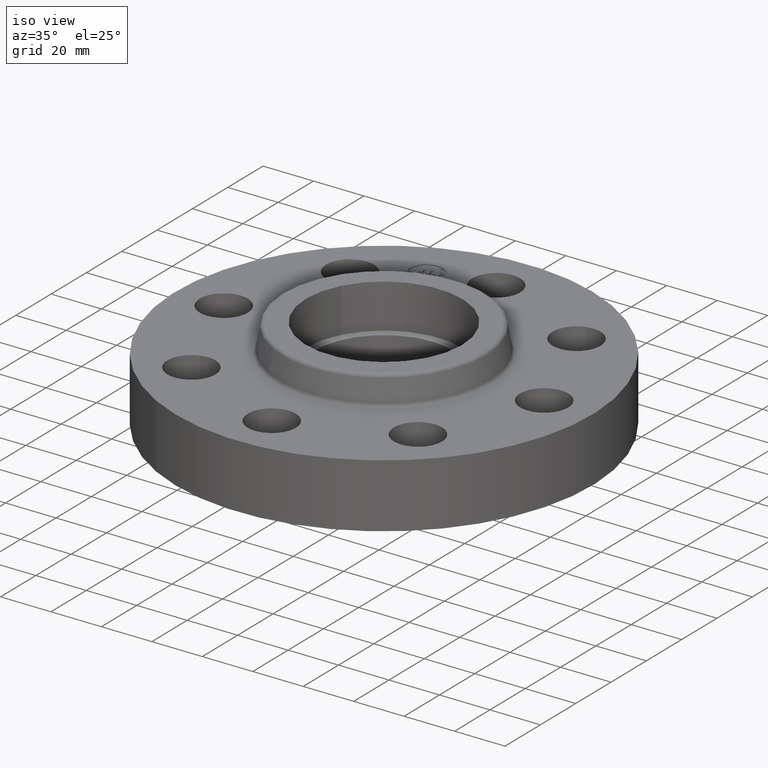
[diagram: clean part render]
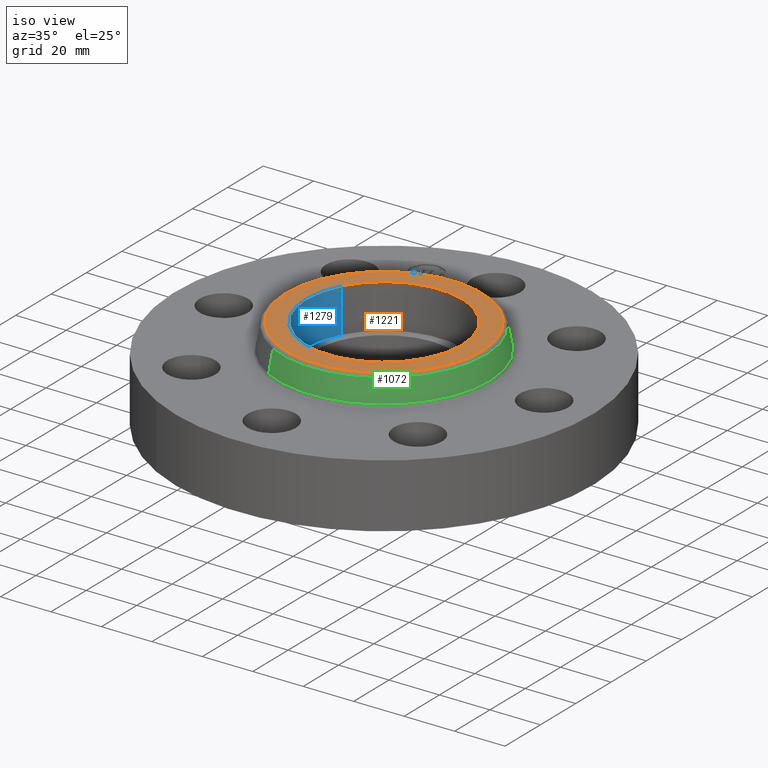
[diagram: same view with three faces highlighted in distinct colors, each labeled with its STEP entity id]
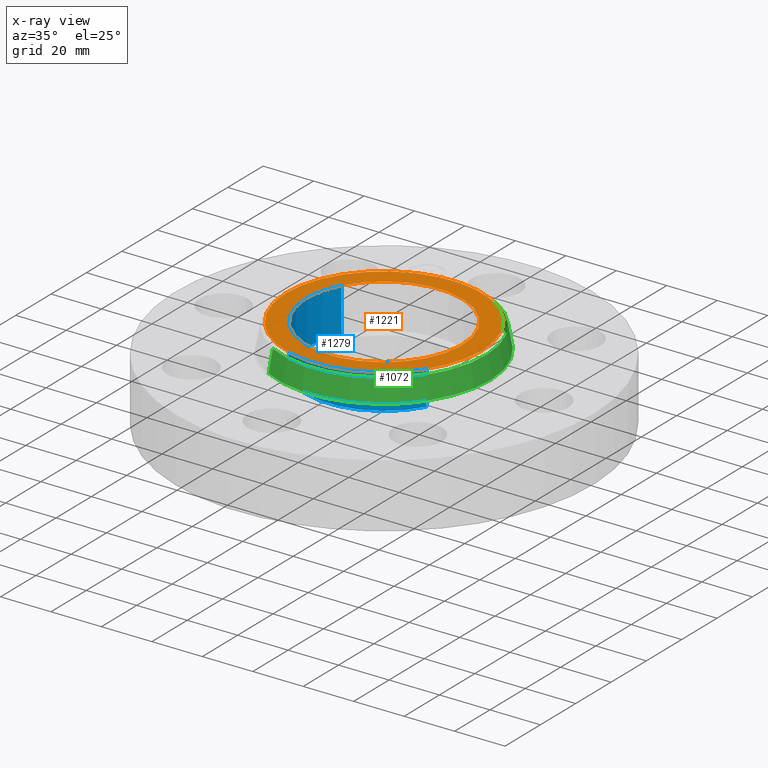
[diagram: x-ray of the same camera — body ghosted, the three highlighted faces saturated]
A machine part, iso view with three faces highlighted in distinct colors.
The next image is the same camera in x-ray (body ghosted, the three faces saturated) — at least one of them is partly hidden behind the body in this view.
Their STEP definitions:

[orange] entity #1221 — the highlighted planar face has unit normal (0, 0, -1).
#1142=AXIS2_PLACEMENT_3D('Circle Axis2P3D',#1140,#1141,$) ;
#1161=AXIS2_PLACEMENT_3D('Circle Axis2P3D',#1159,#1160,$) ;
#1197=AXIS2_PLACEMENT_3D('Plane Axis2P3D',#1194,#1195,#1196) ;
#1205=AXIS2_PLACEMENT_3D('Circle Axis2P3D',#1203,#1204,$) ;
#1214=AXIS2_PLACEMENT_3D('Circle Axis2P3D',#1212,#1213,$) ;
#1137=CARTESIAN_POINT('Vertex',(0.732116429449,1.34013013497,1.44000000001)) ;
#1140=CARTESIAN_POINT('Axis2P3D Location',(0.,0.,1.44000000001)) ;
#1144=CARTESIAN_POINT('Vertex',(-0.732116429449,-1.34013013497,1.44000000001)) ;
#1159=CARTESIAN_POINT('Axis2P3D Location',(0.,0.,1.44000000001)) ;
#1194=CARTESIAN_POINT('Axis2P3D Location',(0.,1.52707015062,1.44000000001)) ;
#1203=CARTESIAN_POINT('Axis2P3D Location',(2.09805925913E-016,-5.59482469102E-016,1.44000000001)) ;
#1207=CARTESIAN_POINT('Vertex',(-1.07065072551,0.584899157099,1.44000000001)) ;
#1209=CARTESIAN_POINT('Vertex',(1.07065072551,-0.584899157099,1.44000000001)) ;
#1212=CARTESIAN_POINT('Axis2P3D Location',(1.39870617276E-016,-2.79741234551E-016,1.44000000001)) ;
#1141=DIRECTION('Axis2P3D Direction',(0.,0.,-0.0393700787402)) ;
#1160=DIRECTION('Axis2P3D Direction',(0.,0.,-0.0393700787402)) ;
#1195=DIRECTION('Axis2P3D Direction',(0.,0.,-0.0393700787402)) ;
#1196=DIRECTION('Axis2P3D XDirection',(0.0393700787402,0.,0.)) ;
#1204=DIRECTION('Axis2P3D Direction',(0.,0.,-0.0393700787402)) ;
#1213=DIRECTION('Axis2P3D Direction',(0.,0.,-0.0393700787402)) ;
#1200=ORIENTED_EDGE('',*,*,#1146,.F.) ;
#1201=ORIENTED_EDGE('',*,*,#1163,.F.) ;
#1218=ORIENTED_EDGE('',*,*,#1211,.T.) ;
#1219=ORIENTED_EDGE('',*,*,#1216,.T.) ;
#1220=FACE_BOUND('',#1217,.T.) ;
#1221=ADVANCED_FACE('PartBody',(#1202,#1220),#1198,.F.) ;
#1143=CIRCLE('generated circle',#1142,1.52707015062) ;
#1162=CIRCLE('generated circle',#1161,1.52707015062) ;
#1206=CIRCLE('generated circle',#1205,1.22) ;
#1215=CIRCLE('generated circle',#1214,1.22) ;
#1146=EDGE_CURVE('',#1138,#1145,#1143,.T.) ;
#1163=EDGE_CURVE('',#1145,#1138,#1162,.T.) ;
#1211=EDGE_CURVE('',#1208,#1210,#1206,.T.) ;
#1216=EDGE_CURVE('',#1210,#1208,#1215,.T.) ;
#1199=EDGE_LOOP('',(#1200,#1201)) ;
#1217=EDGE_LOOP('',(#1218,#1219)) ;
#1202=FACE_OUTER_BOUND('',#1199,.T.) ;
#1198=PLANE('',#1197) ;
#1138=VERTEX_POINT('',#1137) ;
#1145=VERTEX_POINT('',#1144) ;
#1208=VERTEX_POINT('',#1207) ;
#1210=VERTEX_POINT('',#1209) ;

[blue] entity #1279 — the highlighted cylindrical surface (partial cylindrical patch) has radius 30.988 mm, axis along (0, 0, -1).
#51=AXIS2_PLACEMENT_3D('Circle Axis2P3D',#49,#50,$) ;
#1214=AXIS2_PLACEMENT_3D('Circle Axis2P3D',#1212,#1213,$) ;
#1254=AXIS2_PLACEMENT_3D('Cylinder Axis2P3D',#1251,#1252,#1253) ;
#44=CARTESIAN_POINT('Vertex',(-1.07065072551,0.584899157099,0.750000000003)) ;
#46=CARTESIAN_POINT('Vertex',(1.07065072551,-0.584899157099,0.750000000003)) ;
#49=CARTESIAN_POINT('Axis2P3D Location',(1.04902962957E-016,-6.99353086378E-017,0.750000000003)) ;
#1207=CARTESIAN_POINT('Vertex',(-1.07065072551,0.584899157099,1.44000000001)) ;
#1209=CARTESIAN_POINT('Vertex',(1.07065072551,-0.584899157099,1.44000000001)) ;
#1212=CARTESIAN_POINT('Axis2P3D Location',(1.39870617276E-016,-2.79741234551E-016,1.44000000001)) ;
#1251=CARTESIAN_POINT('Axis2P3D Location',(1.04902962957E-016,-6.99353086378E-017,1.43606299213)) ;
#1256=CARTESIAN_POINT('Line Origine',(-1.07065072551,0.584899157099,1.095)) ;
#1261=CARTESIAN_POINT('Line Origine',(1.07065072551,-0.584899157099,1.095)) ;
#50=DIRECTION('Axis2P3D Direction',(0.,0.,-0.0393700787402)) ;
#1213=DIRECTION('Axis2P3D Direction',(0.,0.,-0.0393700787402)) ;
#1252=DIRECTION('Axis2P3D Direction',(0.,0.,-0.0393700787402)) ;
#1253=DIRECTION('Axis2P3D XDirection',(0.0345504945626,-0.0188750212049,0.)) ;
#1257=DIRECTION('Vector Direction',(0.,0.,-0.0393700787402)) ;
#1262=DIRECTION('Vector Direction',(0.,0.,-0.0393700787402)) ;
#1258=VECTOR('Line Direction',#1257,0.0393700787402) ;
#1263=VECTOR('Line Direction',#1262,0.0393700787402) ;
#1274=ORIENTED_EDGE('',*,*,#1216,.F.) ;
#1275=ORIENTED_EDGE('',*,*,#1265,.F.) ;
#1276=ORIENTED_EDGE('',*,*,#53,.T.) ;
#1277=ORIENTED_EDGE('',*,*,#1260,.T.) ;
#1279=ADVANCED_FACE('PartBody',(#1278),#1255,.F.) ;
#52=CIRCLE('generated circle',#51,1.22) ;
#1215=CIRCLE('generated circle',#1214,1.22) ;
#1255=CYLINDRICAL_SURFACE('generated cylinder',#1254,1.22) ;
#53=EDGE_CURVE('',#47,#45,#52,.T.) ;
#1216=EDGE_CURVE('',#1210,#1208,#1215,.T.) ;
#1260=EDGE_CURVE('',#45,#1208,#1259,.F.) ;
#1265=EDGE_CURVE('',#47,#1210,#1264,.F.) ;
#1273=EDGE_LOOP('',(#1274,#1275,#1276,#1277)) ;
#1278=FACE_OUTER_BOUND('',#1273,.T.) ;
#1259=LINE('Line',#1256,#1258) ;
#1264=LINE('Line',#1261,#1263) ;
#45=VERTEX_POINT('',#44) ;
#47=VERTEX_POINT('',#46) ;
#1208=VERTEX_POINT('',#1207) ;
#1210=VERTEX_POINT('',#1209) ;

[green] entity #1072 — the highlighted conical surface has half-angle 10 deg.
#965=AXIS2_PLACEMENT_3D('Circle Axis2P3D',#963,#964,$) ;
#1045=AXIS2_PLACEMENT_3D('Cone Axis2P3D',#1042,#1043,#1044) ;
#1056=AXIS2_PLACEMENT_3D('Circle Axis2P3D',#1054,#1055,$) ;
#960=CARTESIAN_POINT('Vertex',(0.789257894706,1.44472688552,1.04958110934)) ;
#963=CARTESIAN_POINT('Axis2P3D Location',(0.,0.,1.04958110934)) ;
#967=CARTESIAN_POINT('Vertex',(-0.789257894706,-1.44472688552,1.04958110934)) ;
#1042=CARTESIAN_POINT('Axis2P3D Location',(0.,0.,1.39041889067)) ;
#1047=CARTESIAN_POINT('Line Origine',(0.7748514217,1.41835601357,1.22)) ;
#1051=CARTESIAN_POINT('Vertex',(0.760444948694,1.39198514162,1.39041889067)) ;
#1054=CARTESIAN_POINT('Axis2P3D Location',(0.,0.,1.39041889067)) ;
#1058=CARTESIAN_POINT('Vertex',(-0.760444948694,-1.39198514162,1.39041889067)) ;
#1061=CARTESIAN_POINT('Line Origine',(-0.7748514217,-1.41835601357,1.22)) ;
#964=DIRECTION('Axis2P3D Direction',(0.,0.,-0.0393700787402)) ;
#1043=DIRECTION('Axis2P3D Direction',(0.,0.,-0.0393700787402)) ;
#1044=DIRECTION('Axis2P3D XDirection',(-0.0188750212049,-0.0345504945626,0.)) ;
#1048=DIRECTION('Vector Direction',(0.00327761303565,0.00599963041829,-0.03877195878)) ;
#1055=DIRECTION('Axis2P3D Direction',(0.,0.,-0.0393700787402)) ;
#1062=DIRECTION('Vector Direction',(-0.00327761303565,-0.00599963041829,-0.03877195878)) ;
#1049=VECTOR('Line Direction',#1048,0.0393700787402) ;
#1063=VECTOR('Line Direction',#1062,0.0393700787402) ;
#1067=ORIENTED_EDGE('',*,*,#969,.F.) ;
#1068=ORIENTED_EDGE('',*,*,#1053,.T.) ;
#1069=ORIENTED_EDGE('',*,*,#1060,.T.) ;
#1070=ORIENTED_EDGE('',*,*,#1065,.F.) ;
#1072=ADVANCED_FACE('PartBody',(#1071),#1046,.T.) ;
#966=CIRCLE('generated circle',#965,1.6462575127) ;
#1057=CIRCLE('generated circle',#1056,1.5861586158) ;
#1046=CONICAL_SURFACE('Cone',#1045,1.5861586158,0.174532925199) ;
#969=EDGE_CURVE('',#961,#968,#966,.T.) ;
#1053=EDGE_CURVE('',#961,#1052,#1050,.F.) ;
#1060=EDGE_CURVE('',#1052,#1059,#1057,.T.) ;
#1065=EDGE_CURVE('',#968,#1059,#1064,.F.) ;
#1066=EDGE_LOOP('',(#1067,#1068,#1069,#1070)) ;
#1071=FACE_OUTER_BOUND('',#1066,.T.) ;
#1050=LINE('Line',#1047,#1049) ;
#1064=LINE('Line',#1061,#1063) ;
#961=VERTEX_POINT('',#960) ;
#968=VERTEX_POINT('',#967) ;
#1052=VERTEX_POINT('',#1051) ;
#1059=VERTEX_POINT('',#1058) ;